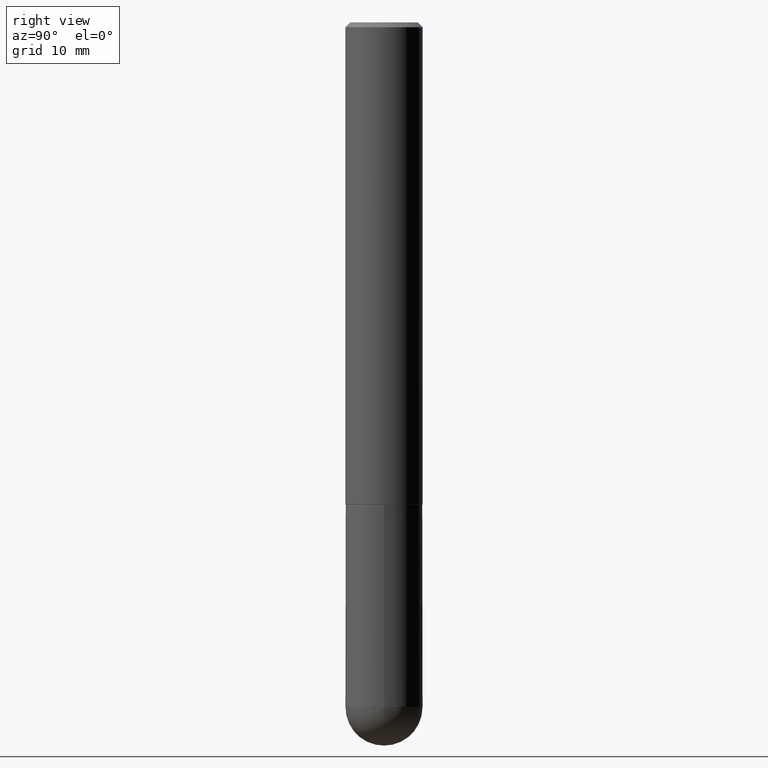
[diagram: clean part render]
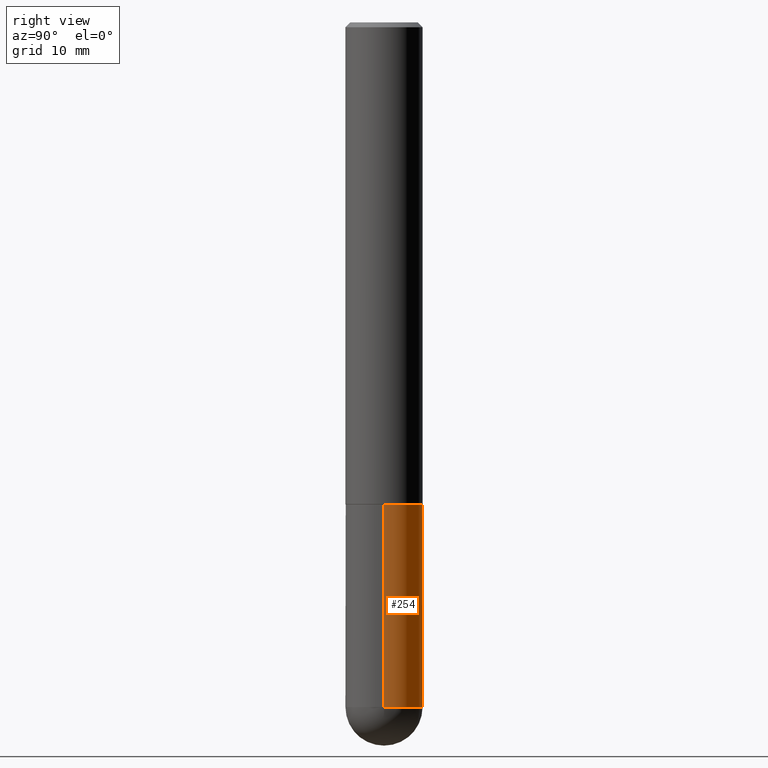
[diagram: same view with one face highlighted and labeled with its STEP entity id]
A machine part, right view. The second image highlights one B-rep face of the part: STEP entity #254.
In plain terms, the highlighted cylindrical surface (partial cylindrical patch) has radius 4.0005 mm, axis along (-0, 0, 1).
Its self-contained STEP definition (entity closure, byte-faithful):
#6 = LINE ( 'NONE', #11, #113 ) ;
#11 = CARTESIAN_POINT ( 'NONE',  ( -0.1575000000000000011, 1.119104808822157801E-15, -7.747322767151475583E-30 ) ) ;
#19 = AXIS2_PLACEMENT_3D ( 'NONE', #387, #230, #167 ) ;
#21 = ORIENTED_EDGE ( 'NONE', *, *, #359, .T. ) ;
#24 = EDGE_CURVE ( 'NONE', #49, #247, #154, .T. ) ;
#34 = CARTESIAN_POINT ( 'NONE',  ( 6.835818953929311707E-29, -9.759737786468243605E-15, -2.795299999999999674 ) ) ;
#36 = CARTESIAN_POINT ( 'NONE',  ( 1.099816621735654731E-15, 0.1574999999999901201, -2.795300000000000118 ) ) ;
#49 = VERTEX_POINT ( 'NONE', #281 ) ;
#56 = CARTESIAN_POINT ( 'NONE',  ( -0.1575000000000000011, -7.197254592168330052E-15, -2.795299999999999674 ) ) ;
#58 = AXIS2_PLACEMENT_3D ( 'NONE', #385, #100, #231 ) ;
#76 = EDGE_LOOP ( 'NONE', ( #369, #21, #308, #329, #366 ) ) ;
#80 = DIRECTION ( 'NONE',  ( -2.445468806185136597E-29, 3.491481338843145583E-15, 1.000000000000000000 ) ) ;
#98 = CARTESIAN_POINT ( 'NONE',  ( 0.1575000000000000011, -1.099816621735586889E-15, 7.679978421878598033E-30 ) ) ;
#100 = DIRECTION ( 'NONE',  ( -2.445468806185136597E-29, 3.491481338843145583E-15, 1.000000000000000000 ) ) ;
#113 = VECTOR ( 'NONE', #382, 39.37007874015748143 ) ;
#124 = FACE_OUTER_BOUND ( 'NONE', #76, .T. ) ;
#127 = DIRECTION ( 'NONE',  ( -2.445468806185136877E-29, 3.491481338843145188E-15, 1.000000000000000000 ) ) ;
#154 = CIRCLE ( 'NONE', #58, 0.1575000000000000011 ) ;
#167 = DIRECTION ( 'NONE',  ( 1.000000000000000000, -6.982962677686261977E-15, 0.000000000000000000 ) ) ;
#168 = VERTEX_POINT ( 'NONE', #172 ) ;
#172 = CARTESIAN_POINT ( 'NONE',  ( 0.1575000000000000011, -9.416176022726072770E-15, -2.795299999999999674 ) ) ;
#173 = AXIS2_PLACEMENT_3D ( 'NONE', #34, #285, #184 ) ;
#184 = DIRECTION ( 'NONE',  ( 1.000000000000000000, -6.982962677686261977E-15, 0.000000000000000000 ) ) ;
#224 = VECTOR ( 'NONE', #127, 39.37007874015748143 ) ;
#230 = DIRECTION ( 'NONE',  ( -2.445468806185136597E-29, 3.491481338843145583E-15, 1.000000000000000000 ) ) ;
#231 = DIRECTION ( 'NONE',  ( 1.000000000000000000, -6.982962677686268288E-15, 0.000000000000000000 ) ) ;
#245 = CYLINDRICAL_SURFACE ( 'NONE', #376, 0.1575000000000000011 ) ;
#247 = VERTEX_POINT ( 'NONE', #354 ) ;
#250 = CIRCLE ( 'NONE', #19, 0.1575000000000000011 ) ;
#254 = ADVANCED_FACE ( 'NONE', ( #124 ), #245, .T. ) ;
#255 = LINE ( 'NONE', #98, #224 ) ;
#276 = EDGE_CURVE ( 'NONE', #340, #405, #344, .T. ) ;
#281 = CARTESIAN_POINT ( 'NONE',  ( 0.1575000000000000011, -7.972797637248318399E-15, -1.968499999999999694 ) ) ;
#285 = DIRECTION ( 'NONE',  ( -2.445468806185136597E-29, 3.491481338843145583E-15, 1.000000000000000000 ) ) ;
#299 = EDGE_CURVE ( 'NONE', #168, #49, #255, .T. ) ;
#308 = ORIENTED_EDGE ( 'NONE', *, *, #24, .F. ) ;
#329 = ORIENTED_EDGE ( 'NONE', *, *, #299, .F. ) ;
#340 = VERTEX_POINT ( 'NONE', #36 ) ;
#344 = CIRCLE ( 'NONE', #173, 0.1575000000000000011 ) ;
#354 = CARTESIAN_POINT ( 'NONE',  ( -0.1575000000000000011, -7.197254592168330052E-15, -1.968499999999999694 ) ) ;
#359 = EDGE_CURVE ( 'NONE', #405, #247, #6, .T. ) ;
#366 = ORIENTED_EDGE ( 'NONE', *, *, #374, .T. ) ;
#367 = CARTESIAN_POINT ( 'NONE',  ( 0.000000000000000000, 0.000000000000000000, 0.000000000000000000 ) ) ;
#369 = ORIENTED_EDGE ( 'NONE', *, *, #276, .T. ) ;
#374 = EDGE_CURVE ( 'NONE', #168, #340, #250, .T. ) ;
#376 = AXIS2_PLACEMENT_3D ( 'NONE', #367, #80, #409 ) ;
#382 = DIRECTION ( 'NONE',  ( -2.445468806185136877E-29, 3.491481338843145188E-15, 1.000000000000000000 ) ) ;
#385 = CARTESIAN_POINT ( 'NONE',  ( 4.813905344975440714E-29, -6.872981015512730918E-15, -1.968499999999999694 ) ) ;
#387 = CARTESIAN_POINT ( 'NONE',  ( 6.835818953929311707E-29, -9.759737786468243605E-15, -2.795299999999999674 ) ) ;
#405 = VERTEX_POINT ( 'NONE', #56 ) ;
#409 = DIRECTION ( 'NONE',  ( 1.000000000000000000, -6.982962677686265922E-15, 4.876176775795935232E-29 ) ) ;